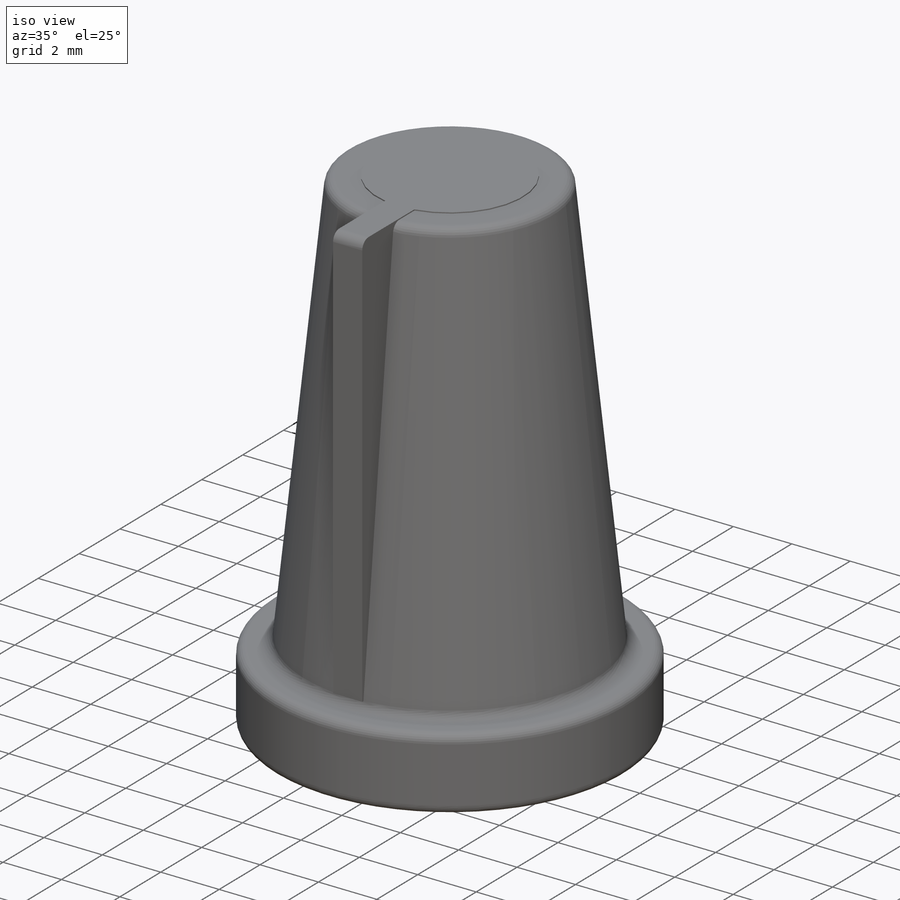
[diagram: iso view]
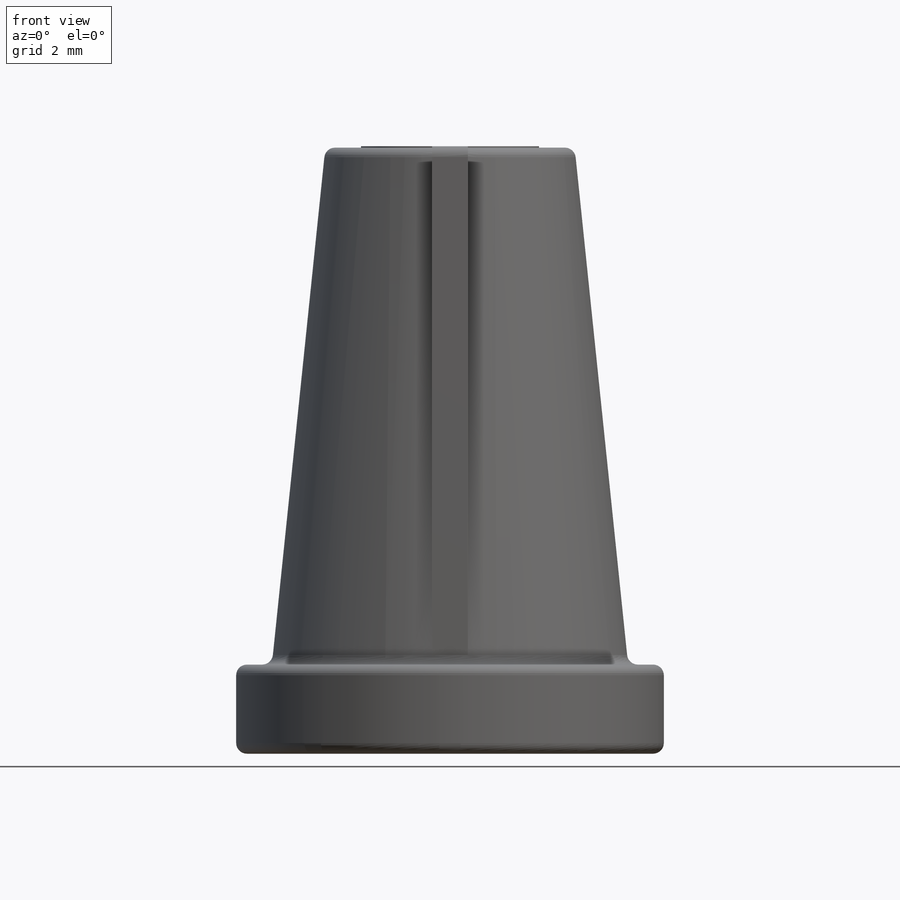
[diagram: front view]
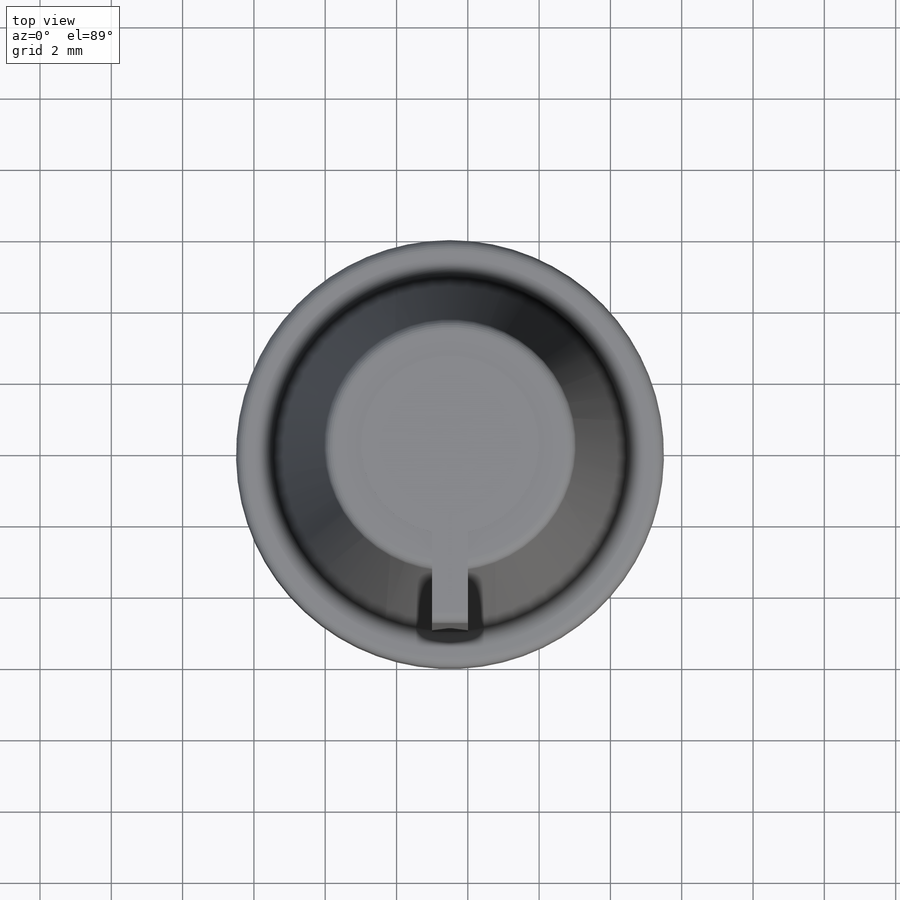
[diagram: top view]
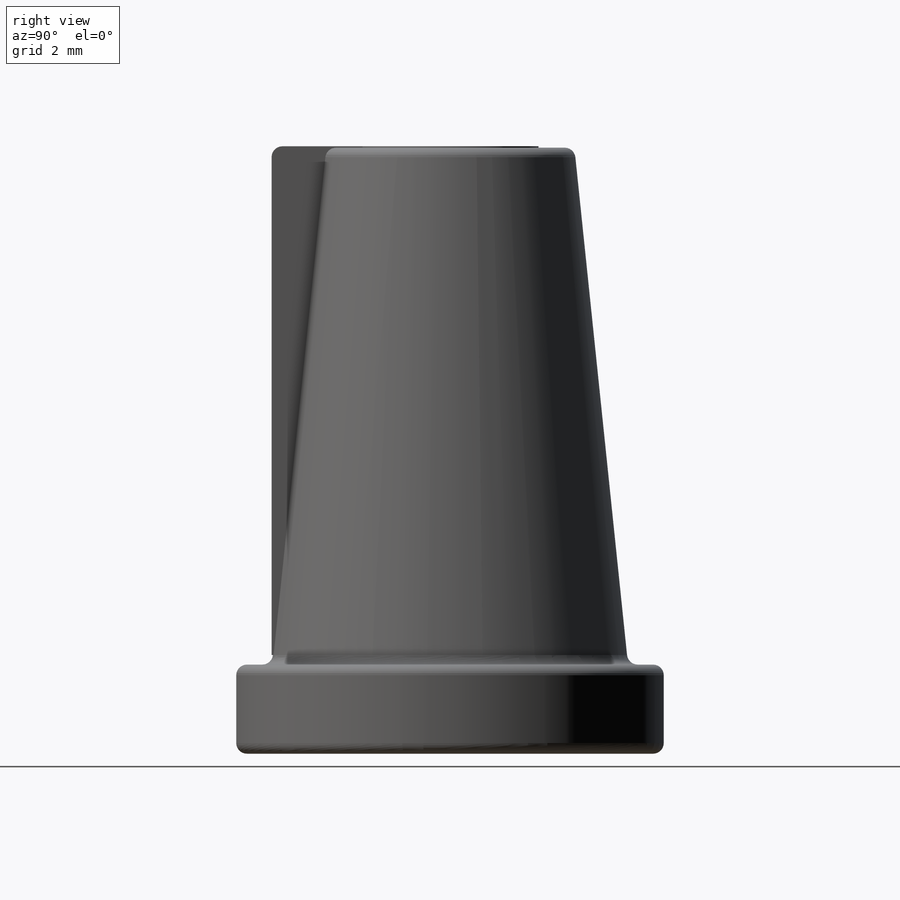
[diagram: right view]
SOLIDWORKS PART (.sldprt)
format: sldprt  version: not decoded by parser v0  size: 301,056 bytes
history: native  units: mm
features: sketch x5, plane x3, extrude x2, cut_extrude x2, material x1, revolve x1 (+9 scaffold rows collapsed)
feature tree (23):
  scaffold x9  (default folders/planes/origin — collapsed)
  material  "Material <sin especificar>"
  plane  "Alzado"
  plane  "Planta"
  plane  "Vista lateral"
  sketch  "Croquis1"  dims[D10=0.3mm D1=6.0mm D2=17.0mm D3=3.5mm D4=2.5mm D5=2.5mm D6=0.5mm D7=0.5mm D8=3.0mm D9=0.5mm]
  revolve  "Revolución1"  Angle=360deg
  sketch  "Croquis2"  dims[D1=1.0mm]
  extrude  "Saliente-Extruir1"  Depth=5mm
  sketch  "Croquis3"
  extrude  "Saliente-Extruir3"  Depth=0.6mm
  sketch  "Croquis4"  dims[D1=0.3mm]
  cut_extrude  "Cortar-Extruir1"  Depth=10.6mm
  sketch  "Croquis5"
  cut_extrude  "Cortar-Extruir2"  [1 undecoded]
decode coverage: 7 of 10 modeling features carry decoded parameters
note: 1 parameter value undecoded
note: suppression state not decoded; provenance and decode notes live in map.json
